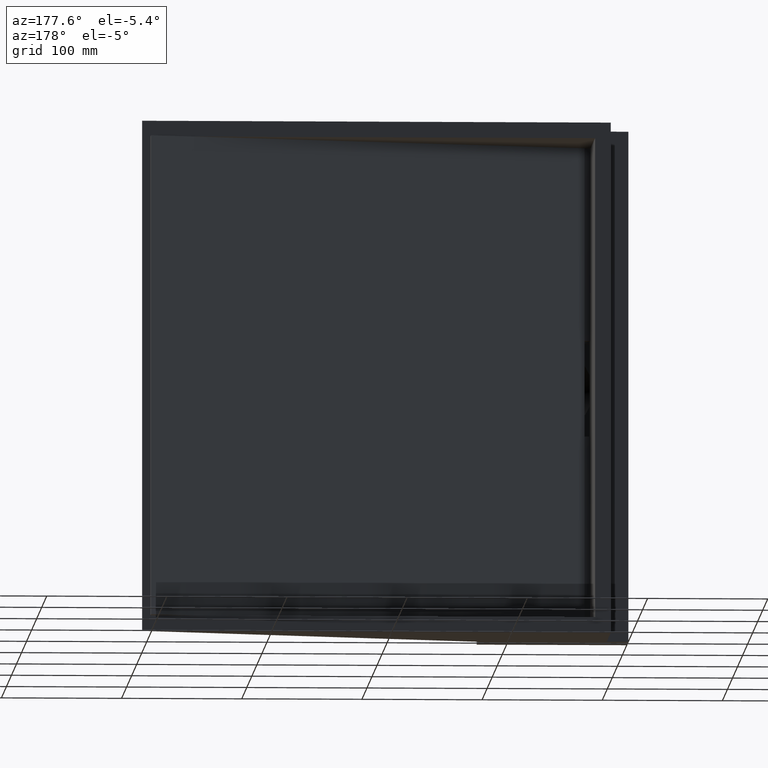
[diagram: clean part render]
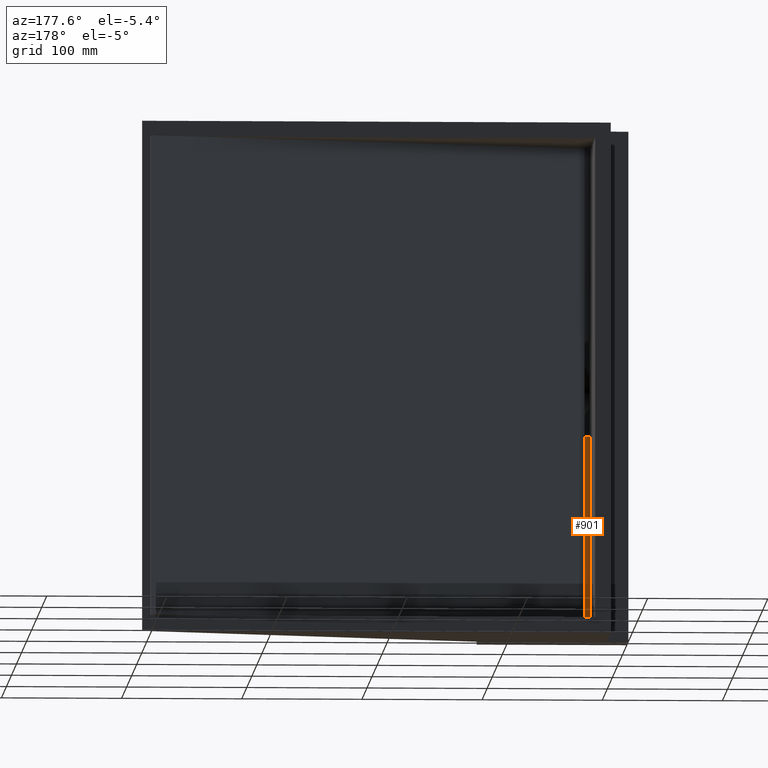
[diagram: same view with one face highlighted and labeled with its STEP entity id]
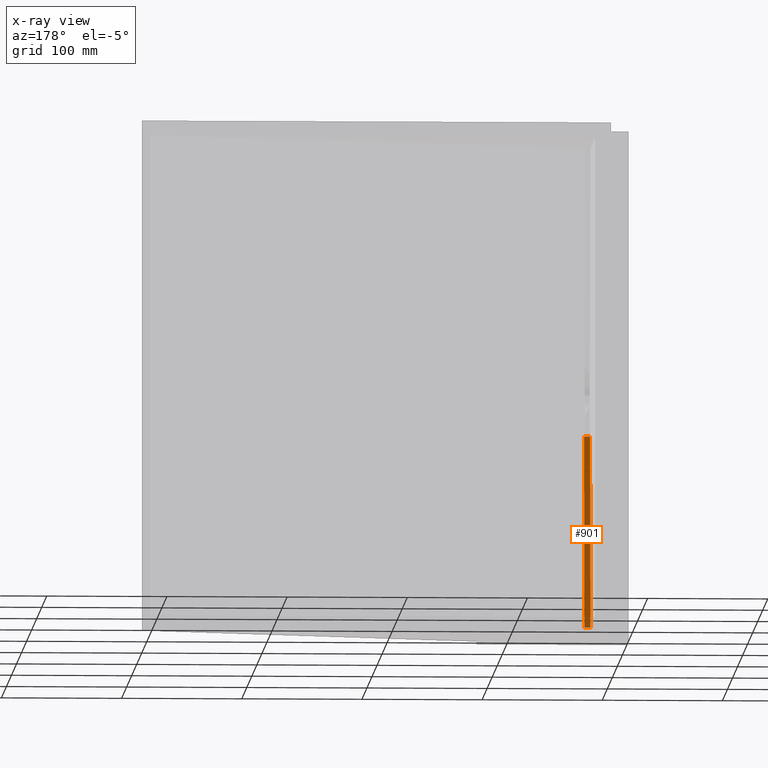
[diagram: x-ray of the same camera — body ghosted, the highlighted face saturated]
A machine part, auxiliary view. The second image highlights one B-rep face of the part: STEP entity #901.
The next image is the same camera in x-ray: the body ghosted, the highlighted face saturated — about 5% of this face is hidden behind the body in this view.
In plain terms, the highlighted planar face has unit normal (0, -0.9995, -0.0312).
Its self-contained STEP definition (entity closure, byte-faithful):
#42 = CARTESIAN_POINT ( 'NONE',  ( 106.0358497959276000, -98.99999999999997200, -40.00000000000000700 ) ) ;
#141 = VECTOR ( 'NONE', #822, 1000.000000000000200 ) ;
#281 = CARTESIAN_POINT ( 'NONE',  ( 106.0358497959276000, -94.00000000000001400, -199.9999999999999700 ) ) ;
#336 = ORIENTED_EDGE ( 'NONE', *, *, #1976, .T. ) ;
#411 = EDGE_CURVE ( 'NONE', #1109, #1130, #435, .T. ) ;
#422 = VERTEX_POINT ( 'NONE', #1142 ) ;
#424 = CARTESIAN_POINT ( 'NONE',  ( -73.11638246079655800, -98.99999999999997200, -40.00000000000000700 ) ) ;
#435 = LINE ( 'NONE', #1797, #2362 ) ;
#460 = EDGE_LOOP ( 'NONE', ( #2573, #336, #1731, #1492 ) ) ;
#523 = DIRECTION ( 'NONE',  ( 0.0000000000000000000, 0.03123475237772098400, -0.9995120760870787000 ) ) ;
#557 = DIRECTION ( 'NONE',  ( -1.000000000000000000, -0.0000000000000000000, -0.0000000000000000000 ) ) ;
#698 = LINE ( 'NONE', #42, #1241 ) ;
#703 = CARTESIAN_POINT ( 'NONE',  ( 106.0358497959276000, -94.00000000000001400, -199.9999999999999700 ) ) ;
#706 = DIRECTION ( 'NONE',  ( 0.0000000000000000000, -0.03123475237772098400, 0.9995120760870787000 ) ) ;
#749 = DIRECTION ( 'NONE',  ( 0.0000000000000000000, -0.9995120760870788200, -0.03123475237772098700 ) ) ;
#778 = LINE ( 'NONE', #703, #1911 ) ;
#803 = EDGE_CURVE ( 'NONE', #1130, #2679, #698, .T. ) ;
#822 = DIRECTION ( 'NONE',  ( 0.0000000000000000000, -0.03123475237772098400, 0.9995120760870787000 ) ) ;
#824 = DIRECTION ( 'NONE',  ( -1.000000000000000000, -0.0000000000000000000, -0.0000000000000000000 ) ) ;
#901 = ADVANCED_FACE ( 'NONE', ( #2788 ), #1904, .F. ) ;
#1109 = VERTEX_POINT ( 'NONE', #1484 ) ;
#1130 = VERTEX_POINT ( 'NONE', #1565 ) ;
#1142 = CARTESIAN_POINT ( 'NONE',  ( -73.11638246079655800, -94.00000000000001400, -199.9999999999999700 ) ) ;
#1240 = AXIS2_PLACEMENT_3D ( 'NONE', #281, #749, #523 ) ;
#1241 = VECTOR ( 'NONE', #824, 1000.000000000000000 ) ;
#1484 = CARTESIAN_POINT ( 'NONE',  ( -68.11638246079655800, -94.00000000000001400, -199.9999999999999700 ) ) ;
#1492 = ORIENTED_EDGE ( 'NONE', *, *, #803, .F. ) ;
#1565 = CARTESIAN_POINT ( 'NONE',  ( -68.11638246079655800, -98.99999999999997200, -40.00000000000000700 ) ) ;
#1586 = EDGE_CURVE ( 'NONE', #422, #2679, #2558, .T. ) ;
#1731 = ORIENTED_EDGE ( 'NONE', *, *, #1586, .T. ) ;
#1797 = CARTESIAN_POINT ( 'NONE',  ( -68.11638246079655800, -94.00000000000001400, -199.9999999999999700 ) ) ;
#1904 = PLANE ( 'NONE',  #1240 ) ;
#1911 = VECTOR ( 'NONE', #557, 1000.000000000000000 ) ;
#1976 = EDGE_CURVE ( 'NONE', #1109, #422, #778, .T. ) ;
#2177 = CARTESIAN_POINT ( 'NONE',  ( -73.11638246079655800, -94.00000000000001400, -199.9999999999999700 ) ) ;
#2362 = VECTOR ( 'NONE', #706, 1000.000000000000100 ) ;
#2558 = LINE ( 'NONE', #2177, #141 ) ;
#2573 = ORIENTED_EDGE ( 'NONE', *, *, #411, .F. ) ;
#2679 = VERTEX_POINT ( 'NONE', #424 ) ;
#2788 = FACE_OUTER_BOUND ( 'NONE', #460, .T. ) ;